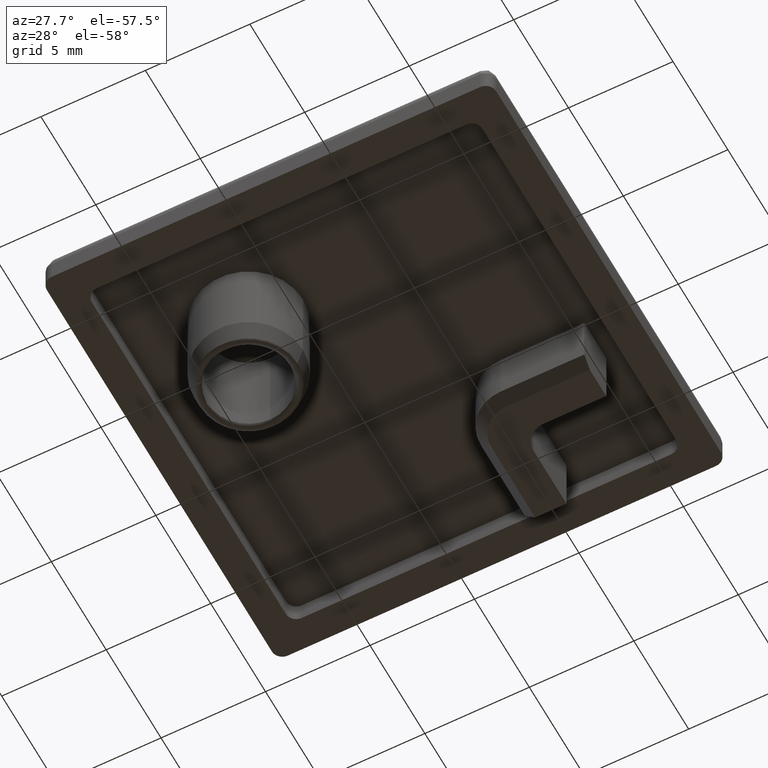
[diagram: clean part render]
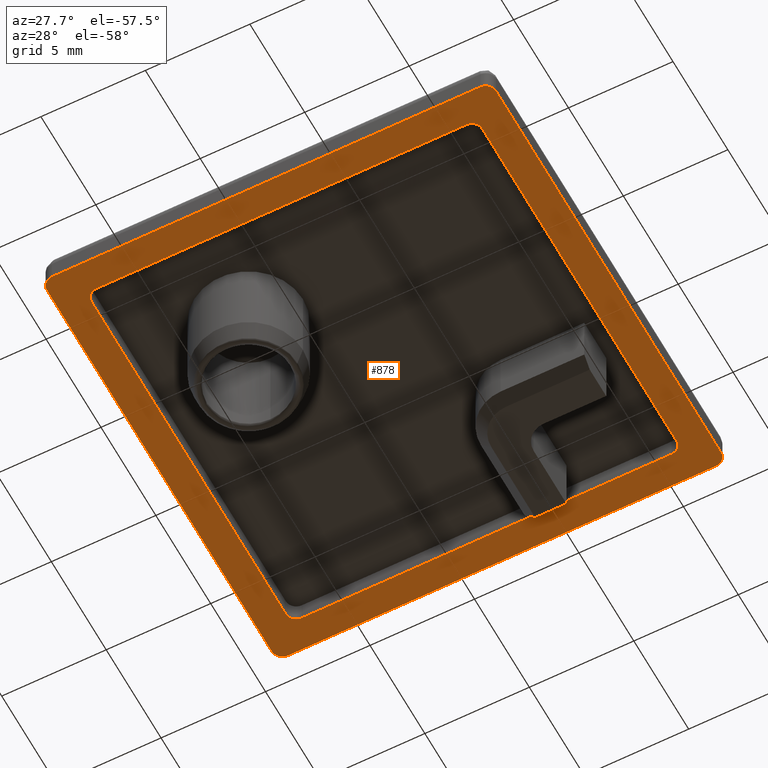
[diagram: same view with one face highlighted and labeled with its STEP entity id]
A machine part, auxiliary view. The second image highlights one B-rep face of the part: STEP entity #878.
In plain terms, the highlighted planar face has unit normal (0, 0, 1).
Its self-contained STEP definition (entity closure, byte-faithful):
#542=CARTESIAN_POINT('',(21.353553390593277,0.353553390593267,0.0));
#543=VERTEX_POINT('',#542);
#561=CARTESIAN_POINT('',(20.853553390593277,-0.146446609406733,0.0));
#562=VERTEX_POINT('',#561);
#569=CARTESIAN_POINT('',(20.853553390593277,0.353553390593267,0.0));
#570=DIRECTION('',(0.0,0.0,1.0));
#571=DIRECTION('',(1.0,0.0,0.0));
#572=AXIS2_PLACEMENT_3D('',#569,#570,#571);
#573=CIRCLE('',#572,0.500000000000001);
#574=EDGE_CURVE('',#562,#543,#573,.T.);
#584=CARTESIAN_POINT('',(21.353553390593277,20.853553390593266,0.0));
#585=VERTEX_POINT('',#584);
#601=CARTESIAN_POINT('',(21.353553390593277,0.353553390593267,0.0));
#602=DIRECTION('',(0.0,1.0,0.0));
#603=VECTOR('',#602,20.500000000000000);
#604=LINE('',#601,#603);
#605=EDGE_CURVE('',#543,#585,#604,.T.);
#615=CARTESIAN_POINT('',(20.853553390593277,21.353553390593273,0.0));
#616=VERTEX_POINT('',#615);
#633=CARTESIAN_POINT('',(20.853553390593277,20.853553390593266,0.0));
#634=DIRECTION('',(0.0,0.0,1.0));
#635=DIRECTION('',(-1.0,0.0,0.0));
#636=AXIS2_PLACEMENT_3D('',#633,#634,#635);
#637=CIRCLE('',#636,0.500000000000001);
#638=EDGE_CURVE('',#585,#616,#637,.T.);
#648=CARTESIAN_POINT('',(0.353553390593281,21.353553390593273,0.0));
#649=VERTEX_POINT('',#648);
#665=CARTESIAN_POINT('',(20.853553390593277,21.353553390593273,0.0));
#666=DIRECTION('',(-1.0,0.0,0.0));
#667=VECTOR('',#666,20.499999999999996);
#668=LINE('',#665,#667);
#669=EDGE_CURVE('',#616,#649,#668,.T.);
#679=CARTESIAN_POINT('',(-0.146446609406719,20.853553390593273,0.0));
#680=VERTEX_POINT('',#679);
#697=CARTESIAN_POINT('',(0.353553390593281,20.853553390593273,0.0));
#698=DIRECTION('',(0.0,0.0,1.0));
#699=DIRECTION('',(1.0,0.0,0.0));
#700=AXIS2_PLACEMENT_3D('',#697,#698,#699);
#701=CIRCLE('',#700,0.500000000000000);
#702=EDGE_CURVE('',#649,#680,#701,.T.);
#712=CARTESIAN_POINT('',(-0.146446609406726,0.353553390593274,0.0));
#713=VERTEX_POINT('',#712);
#729=CARTESIAN_POINT('',(-0.146446609406719,20.853553390593273,0.0));
#730=DIRECTION('',(0.0,-1.0,0.0));
#731=VECTOR('',#730,20.500000000000000);
#732=LINE('',#729,#731);
#733=EDGE_CURVE('',#680,#713,#732,.T.);
#743=CARTESIAN_POINT('',(0.353553390593274,-0.146446609406726,0.0));
#744=VERTEX_POINT('',#743);
#761=CARTESIAN_POINT('',(0.353553390593274,0.353553390593274,0.0));
#762=DIRECTION('',(0.0,0.0,1.0));
#763=DIRECTION('',(1.0,0.0,0.0));
#764=AXIS2_PLACEMENT_3D('',#761,#762,#763);
#765=CIRCLE('',#764,0.500000000000000);
#766=EDGE_CURVE('',#713,#744,#765,.T.);
#784=CARTESIAN_POINT('',(0.353553390593274,-0.146446609406727,0.0));
#785=DIRECTION('',(1.0,0.0,0.0));
#786=VECTOR('',#785,20.500000000000004);
#787=LINE('',#784,#786);
#788=EDGE_CURVE('',#744,#562,#787,.T.);
#793=CARTESIAN_POINT('',(-1.221446609406725,-1.221446609406734,0.0));
#794=DIRECTION('',(0.0,0.0,1.0));
#795=DIRECTION('',(1.0,0.0,0.0));
#796=AXIS2_PLACEMENT_3D('',#793,#794,#795);
#797=PLANE('',#796);
#798=ORIENTED_EDGE('',*,*,#574,.F.);
#799=ORIENTED_EDGE('',*,*,#788,.F.);
#800=ORIENTED_EDGE('',*,*,#766,.F.);
#801=ORIENTED_EDGE('',*,*,#733,.F.);
#802=ORIENTED_EDGE('',*,*,#702,.F.);
#803=ORIENTED_EDGE('',*,*,#669,.F.);
#804=ORIENTED_EDGE('',*,*,#638,.F.);
#805=ORIENTED_EDGE('',*,*,#605,.F.);
#806=EDGE_LOOP('',(#798,#799,#800,#801,#802,#803,#804,#805));
#807=FACE_OUTER_BOUND('',#806,.T.);
#808=CARTESIAN_POINT('',(19.453553390593274,1.253553390593270,0.0));
#809=VERTEX_POINT('',#808);
#810=CARTESIAN_POINT('',(1.753553390593276,1.253553390593270,0.0));
#811=VERTEX_POINT('',#810);
#812=CARTESIAN_POINT('',(19.453553390593274,1.253553390593270,0.0));
#813=DIRECTION('',(-1.0,0.0,0.0));
#814=VECTOR('',#813,17.699999999999999);
#815=LINE('',#812,#814);
#816=EDGE_CURVE('',#809,#811,#815,.T.);
#817=ORIENTED_EDGE('',*,*,#816,.F.);
#818=CARTESIAN_POINT('',(19.953553390593274,1.753553390593272,0.0));
#819=VERTEX_POINT('',#818);
#820=CARTESIAN_POINT('',(19.453553390593274,1.753553390593270,0.0));
#821=DIRECTION('',(0.0,0.0,-1.0));
#822=DIRECTION('',(0.0,1.0,0.0));
#823=AXIS2_PLACEMENT_3D('',#820,#821,#822);
#824=CIRCLE('',#823,0.500000000000000);
#825=EDGE_CURVE('',#819,#809,#824,.T.);
#826=ORIENTED_EDGE('',*,*,#825,.F.);
#827=CARTESIAN_POINT('',(19.953553390593274,19.453553390593274,0.0));
#828=VERTEX_POINT('',#827);
#829=CARTESIAN_POINT('',(19.953553390593274,19.453553390593274,0.0));
#830=DIRECTION('',(0.0,-1.0,0.0));
#831=VECTOR('',#830,17.700000000000003);
#832=LINE('',#829,#831);
#833=EDGE_CURVE('',#828,#819,#832,.T.);
#834=ORIENTED_EDGE('',*,*,#833,.F.);
#835=CARTESIAN_POINT('',(19.453553390593274,19.953553390593274,0.0));
#836=VERTEX_POINT('',#835);
#837=CARTESIAN_POINT('',(19.453553390593274,19.453553390593274,0.0));
#838=DIRECTION('',(0.0,0.0,-1.0));
#839=DIRECTION('',(0.0,-1.0,0.0));
#840=AXIS2_PLACEMENT_3D('',#837,#838,#839);
#841=CIRCLE('',#840,0.500000000000001);
#842=EDGE_CURVE('',#836,#828,#841,.T.);
#843=ORIENTED_EDGE('',*,*,#842,.F.);
#844=CARTESIAN_POINT('',(1.753553390593278,19.953553390593274,0.0));
#845=VERTEX_POINT('',#844);
#846=CARTESIAN_POINT('',(1.753553390593278,19.953553390593274,0.0));
#847=DIRECTION('',(1.0,0.0,0.0));
#848=VECTOR('',#847,17.699999999999996);
#849=LINE('',#846,#848);
#850=EDGE_CURVE('',#845,#836,#849,.T.);
#851=ORIENTED_EDGE('',*,*,#850,.F.);
#852=CARTESIAN_POINT('',(1.253553390593277,19.453553390593274,0.0));
#853=VERTEX_POINT('',#852);
#854=CARTESIAN_POINT('',(1.753553390593278,19.453553390593274,0.0));
#855=DIRECTION('',(0.0,0.0,-1.0));
#856=DIRECTION('',(0.0,-1.0,0.0));
#857=AXIS2_PLACEMENT_3D('',#854,#855,#856);
#858=CIRCLE('',#857,0.500000000000001);
#859=EDGE_CURVE('',#853,#845,#858,.T.);
#860=ORIENTED_EDGE('',*,*,#859,.F.);
#861=CARTESIAN_POINT('',(1.253553390593278,1.753553390593270,0.0));
#862=VERTEX_POINT('',#861);
#863=CARTESIAN_POINT('',(1.253553390593277,1.753553390593270,0.0));
#864=DIRECTION('',(0.0,1.0,0.0));
#865=VECTOR('',#864,17.700000000000003);
#866=LINE('',#863,#865);
#867=EDGE_CURVE('',#862,#853,#866,.T.);
#868=ORIENTED_EDGE('',*,*,#867,.F.);
#869=CARTESIAN_POINT('',(1.753553390593278,1.753553390593270,0.0));
#870=DIRECTION('',(0.0,0.0,-1.0));
#871=DIRECTION('',(0.0,1.0,0.0));
#872=AXIS2_PLACEMENT_3D('',#869,#870,#871);
#873=CIRCLE('',#872,0.500000000000000);
#874=EDGE_CURVE('',#811,#862,#873,.T.);
#875=ORIENTED_EDGE('',*,*,#874,.F.);
#876=EDGE_LOOP('',(#817,#826,#834,#843,#851,#860,#868,#875));
#877=FACE_BOUND('',#876,.T.);
#878=ADVANCED_FACE('',(#807,#877),#797,.F.);